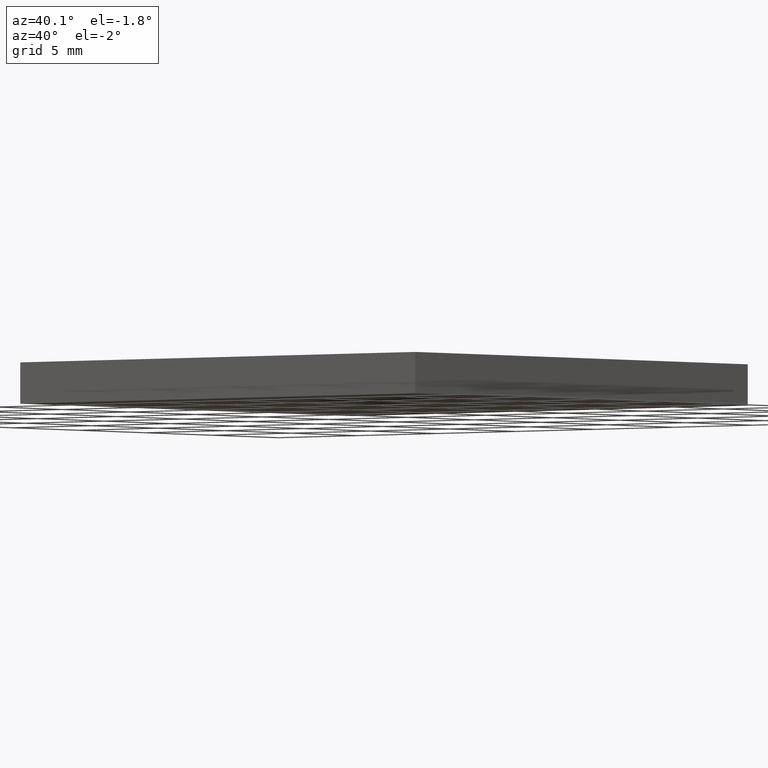
[diagram: clean part render]
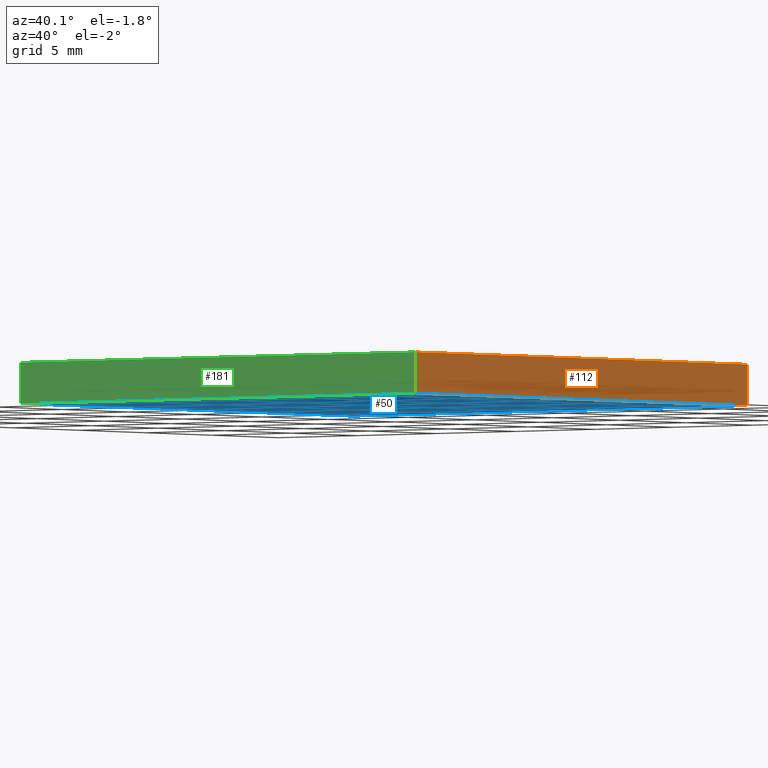
[diagram: same view with three faces highlighted in distinct colors, each labeled with its STEP entity id]
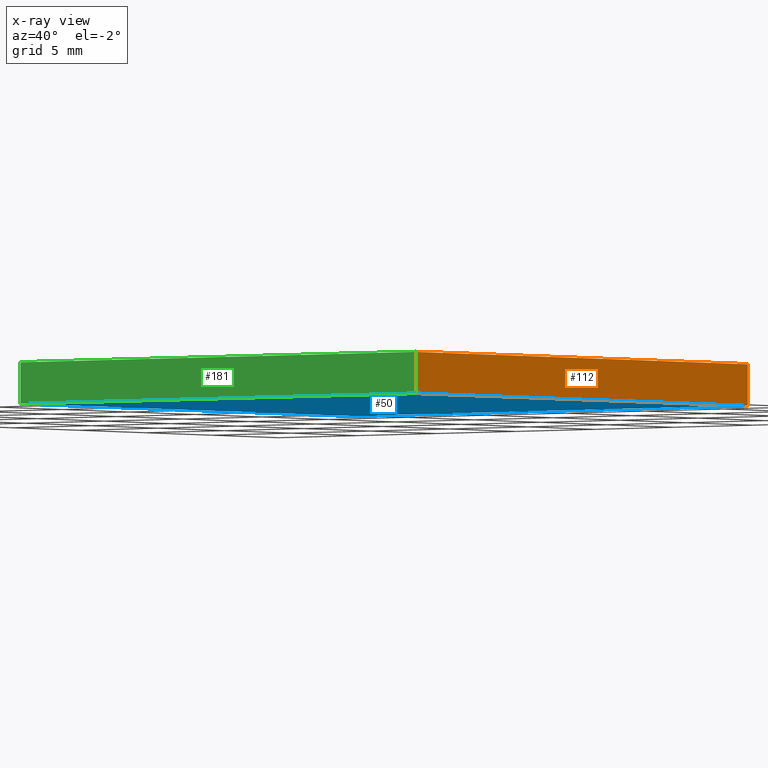
[diagram: x-ray of the same camera — body ghosted, the three highlighted faces saturated]
A machine part, auxiliary view with three faces highlighted in distinct colors.
The next image is the same camera in x-ray (body ghosted, the three faces saturated) — at least one of them is partly hidden behind the body in this view.
Their STEP definitions:

[orange] entity #112 — the highlighted planar face has unit normal (-1, 0, 0).
#3 = DIRECTION ( 'NONE',  ( -1.000000000000000000, 0.0000000000000000000, 0.0000000000000000000 ) ) ;
#4 = LINE ( 'NONE', #63, #105 ) ;
#5 = ORIENTED_EDGE ( 'NONE', *, *, #42, .T. ) ;
#11 = LINE ( 'NONE', #41, #191 ) ;
#29 = CARTESIAN_POINT ( 'NONE',  ( 233.3087717288429700, 64.79317934901541800, 2.000000000000000000 ) ) ;
#30 = VECTOR ( 'NONE', #55, 1000.000000000000000 ) ;
#33 = PLANE ( 'NONE',  #138 ) ;
#34 = CARTESIAN_POINT ( 'NONE',  ( 233.3087717288429700, 89.79317934901541800, 2.000000000000000000 ) ) ;
#40 = VERTEX_POINT ( 'NONE', #56 ) ;
#41 = CARTESIAN_POINT ( 'NONE',  ( 233.3087717288429700, 89.79317934901541800, 0.0000000000000000000 ) ) ;
#42 = EDGE_CURVE ( 'NONE', #152, #40, #11, .T. ) ;
#45 = ORIENTED_EDGE ( 'NONE', *, *, #148, .T. ) ;
#46 = EDGE_CURVE ( 'NONE', #123, #40, #157, .T. ) ;
#47 = CARTESIAN_POINT ( 'NONE',  ( 233.3087717288429700, 89.79317934901541800, 2.000000000000000000 ) ) ;
#49 = FACE_OUTER_BOUND ( 'NONE', #145, .T. ) ;
#51 = EDGE_CURVE ( 'NONE', #86, #123, #98, .T. ) ;
#54 = CARTESIAN_POINT ( 'NONE',  ( 233.3087717288429700, 89.79317934901541800, 2.000000000000000000 ) ) ;
#55 = DIRECTION ( 'NONE',  ( -0.0000000000000000000, 1.000000000000000000, -0.0000000000000000000 ) ) ;
#56 = CARTESIAN_POINT ( 'NONE',  ( 233.3087717288429700, 89.79317934901541800, 0.0000000000000000000 ) ) ;
#63 = CARTESIAN_POINT ( 'NONE',  ( 233.3087717288429700, 64.79317934901541800, 2.000000000000000000 ) ) ;
#86 = VERTEX_POINT ( 'NONE', #29 ) ;
#98 = LINE ( 'NONE', #54, #30 ) ;
#102 = ORIENTED_EDGE ( 'NONE', *, *, #51, .F. ) ;
#105 = VECTOR ( 'NONE', #176, 1000.000000000000000 ) ;
#112 = ADVANCED_FACE ( 'NONE', ( #49 ), #33, .F. ) ;
#119 = DIRECTION ( 'NONE',  ( -0.0000000000000000000, -0.0000000000000000000, -1.000000000000000000 ) ) ;
#122 = VECTOR ( 'NONE', #119, 1000.000000000000000 ) ;
#123 = VERTEX_POINT ( 'NONE', #34 ) ;
#125 = CARTESIAN_POINT ( 'NONE',  ( 233.3087717288429700, 64.79317934901541800, 0.0000000000000000000 ) ) ;
#126 = ORIENTED_EDGE ( 'NONE', *, *, #46, .F. ) ;
#138 = AXIS2_PLACEMENT_3D ( 'NONE', #47, #3, #178 ) ;
#145 = EDGE_LOOP ( 'NONE', ( #5, #126, #102, #45 ) ) ;
#148 = EDGE_CURVE ( 'NONE', #86, #152, #4, .T. ) ;
#152 = VERTEX_POINT ( 'NONE', #125 ) ;
#157 = LINE ( 'NONE', #171, #122 ) ;
#171 = CARTESIAN_POINT ( 'NONE',  ( 233.3087717288429700, 89.79317934901541800, 2.000000000000000000 ) ) ;
#176 = DIRECTION ( 'NONE',  ( -0.0000000000000000000, -0.0000000000000000000, -1.000000000000000000 ) ) ;
#178 = DIRECTION ( 'NONE',  ( 0.0000000000000000000, 0.0000000000000000000, 1.000000000000000000 ) ) ;
#185 = DIRECTION ( 'NONE',  ( -0.0000000000000000000, 1.000000000000000000, -0.0000000000000000000 ) ) ;
#191 = VECTOR ( 'NONE', #185, 1000.000000000000000 ) ;

[blue] entity #50 — the highlighted planar face has unit normal (0, 0, -1).
#9 = CARTESIAN_POINT ( 'NONE',  ( 208.3087717288429400, 77.29317934901541800, 0.0000000000000000000 ) ) ;
#11 = LINE ( 'NONE', #41, #191 ) ;
#14 = ORIENTED_EDGE ( 'NONE', *, *, #42, .F. ) ;
#15 = CARTESIAN_POINT ( 'NONE',  ( 208.3087717288429400, 64.79317934901541800, 0.0000000000000000000 ) ) ;
#19 = AXIS2_PLACEMENT_3D ( 'NONE', #89, #198, #116 ) ;
#26 = VERTEX_POINT ( 'NONE', #153 ) ;
#35 = EDGE_CURVE ( 'NONE', #26, #92, #173, .T. ) ;
#40 = VERTEX_POINT ( 'NONE', #56 ) ;
#41 = CARTESIAN_POINT ( 'NONE',  ( 233.3087717288429700, 89.79317934901541800, 0.0000000000000000000 ) ) ;
#42 = EDGE_CURVE ( 'NONE', #152, #40, #11, .T. ) ;
#50 = ADVANCED_FACE ( 'NONE', ( #140 ), #58, .T. ) ;
#53 = EDGE_CURVE ( 'NONE', #92, #152, #163, .T. ) ;
#56 = CARTESIAN_POINT ( 'NONE',  ( 233.3087717288429700, 89.79317934901541800, 0.0000000000000000000 ) ) ;
#57 = VECTOR ( 'NONE', #139, 1000.000000000000000 ) ;
#58 = PLANE ( 'NONE',  #19 ) ;
#62 = LINE ( 'NONE', #70, #95 ) ;
#67 = VECTOR ( 'NONE', #187, 1000.000000000000000 ) ;
#70 = CARTESIAN_POINT ( 'NONE',  ( 208.3087717288429400, 89.79317934901541800, 0.0000000000000000000 ) ) ;
#72 = ORIENTED_EDGE ( 'NONE', *, *, #53, .F. ) ;
#82 = EDGE_LOOP ( 'NONE', ( #72, #117, #167, #14 ) ) ;
#89 = CARTESIAN_POINT ( 'NONE',  ( 0.0000000000000000000, 0.0000000000000000000, 0.0000000000000000000 ) ) ;
#92 = VERTEX_POINT ( 'NONE', #15 ) ;
#95 = VECTOR ( 'NONE', #193, 1000.000000000000000 ) ;
#116 = DIRECTION ( 'NONE',  ( -1.000000000000000000, 0.0000000000000000000, -0.0000000000000000000 ) ) ;
#117 = ORIENTED_EDGE ( 'NONE', *, *, #35, .F. ) ;
#120 = CARTESIAN_POINT ( 'NONE',  ( 233.3087717288429700, 64.79317934901541800, 0.0000000000000000000 ) ) ;
#125 = CARTESIAN_POINT ( 'NONE',  ( 233.3087717288429700, 64.79317934901541800, 0.0000000000000000000 ) ) ;
#131 = EDGE_CURVE ( 'NONE', #40, #26, #62, .T. ) ;
#139 = DIRECTION ( 'NONE',  ( 1.000000000000000000, -0.0000000000000000000, -0.0000000000000000000 ) ) ;
#140 = FACE_OUTER_BOUND ( 'NONE', #82, .T. ) ;
#152 = VERTEX_POINT ( 'NONE', #125 ) ;
#153 = CARTESIAN_POINT ( 'NONE',  ( 208.3087717288429400, 89.79317934901541800, 0.0000000000000000000 ) ) ;
#163 = LINE ( 'NONE', #120, #57 ) ;
#167 = ORIENTED_EDGE ( 'NONE', *, *, #131, .F. ) ;
#173 = LINE ( 'NONE', #9, #67 ) ;
#185 = DIRECTION ( 'NONE',  ( -0.0000000000000000000, 1.000000000000000000, -0.0000000000000000000 ) ) ;
#187 = DIRECTION ( 'NONE',  ( -0.0000000000000000000, -1.000000000000000000, -0.0000000000000000000 ) ) ;
#191 = VECTOR ( 'NONE', #185, 1000.000000000000000 ) ;
#193 = DIRECTION ( 'NONE',  ( -1.000000000000000000, -0.0000000000000000000, -0.0000000000000000000 ) ) ;
#198 = DIRECTION ( 'NONE',  ( 0.0000000000000000000, 0.0000000000000000000, -1.000000000000000000 ) ) ;

[green] entity #181 — the highlighted planar face has unit normal (0, 1, -0).
#4 = LINE ( 'NONE', #63, #105 ) ;
#7 = CARTESIAN_POINT ( 'NONE',  ( 233.3087717288429700, 64.79317934901541800, 2.000000000000000000 ) ) ;
#15 = CARTESIAN_POINT ( 'NONE',  ( 208.3087717288429400, 64.79317934901541800, 0.0000000000000000000 ) ) ;
#16 = ORIENTED_EDGE ( 'NONE', *, *, #23, .F. ) ;
#23 = EDGE_CURVE ( 'NONE', #36, #86, #197, .T. ) ;
#29 = CARTESIAN_POINT ( 'NONE',  ( 233.3087717288429700, 64.79317934901541800, 2.000000000000000000 ) ) ;
#36 = VERTEX_POINT ( 'NONE', #136 ) ;
#43 = DIRECTION ( 'NONE',  ( -0.0000000000000000000, -0.0000000000000000000, -1.000000000000000000 ) ) ;
#53 = EDGE_CURVE ( 'NONE', #92, #152, #163, .T. ) ;
#57 = VECTOR ( 'NONE', #139, 1000.000000000000000 ) ;
#61 = AXIS2_PLACEMENT_3D ( 'NONE', #127, #195, #201 ) ;
#63 = CARTESIAN_POINT ( 'NONE',  ( 233.3087717288429700, 64.79317934901541800, 2.000000000000000000 ) ) ;
#64 = ORIENTED_EDGE ( 'NONE', *, *, #148, .F. ) ;
#65 = EDGE_CURVE ( 'NONE', #36, #92, #132, .T. ) ;
#86 = VERTEX_POINT ( 'NONE', #29 ) ;
#92 = VERTEX_POINT ( 'NONE', #15 ) ;
#105 = VECTOR ( 'NONE', #176, 1000.000000000000000 ) ;
#107 = PLANE ( 'NONE',  #61 ) ;
#120 = CARTESIAN_POINT ( 'NONE',  ( 233.3087717288429700, 64.79317934901541800, 0.0000000000000000000 ) ) ;
#125 = CARTESIAN_POINT ( 'NONE',  ( 233.3087717288429700, 64.79317934901541800, 0.0000000000000000000 ) ) ;
#127 = CARTESIAN_POINT ( 'NONE',  ( 233.3087717288429700, 64.79317934901541800, 2.000000000000000000 ) ) ;
#132 = LINE ( 'NONE', #170, #146 ) ;
#135 = EDGE_LOOP ( 'NONE', ( #166, #64, #16, #169 ) ) ;
#136 = CARTESIAN_POINT ( 'NONE',  ( 208.3087717288429400, 64.79317934901541800, 2.000000000000000000 ) ) ;
#139 = DIRECTION ( 'NONE',  ( 1.000000000000000000, -0.0000000000000000000, -0.0000000000000000000 ) ) ;
#146 = VECTOR ( 'NONE', #43, 1000.000000000000000 ) ;
#148 = EDGE_CURVE ( 'NONE', #86, #152, #4, .T. ) ;
#150 = FACE_OUTER_BOUND ( 'NONE', #135, .T. ) ;
#151 = DIRECTION ( 'NONE',  ( 1.000000000000000000, -0.0000000000000000000, -0.0000000000000000000 ) ) ;
#152 = VERTEX_POINT ( 'NONE', #125 ) ;
#159 = VECTOR ( 'NONE', #151, 1000.000000000000000 ) ;
#163 = LINE ( 'NONE', #120, #57 ) ;
#166 = ORIENTED_EDGE ( 'NONE', *, *, #53, .T. ) ;
#169 = ORIENTED_EDGE ( 'NONE', *, *, #65, .T. ) ;
#170 = CARTESIAN_POINT ( 'NONE',  ( 208.3087717288429400, 64.79317934901541800, 2.000000000000000000 ) ) ;
#176 = DIRECTION ( 'NONE',  ( -0.0000000000000000000, -0.0000000000000000000, -1.000000000000000000 ) ) ;
#181 = ADVANCED_FACE ( 'NONE', ( #150 ), #107, .F. ) ;
#195 = DIRECTION ( 'NONE',  ( 0.0000000000000000000, 1.000000000000000000, -0.0000000000000000000 ) ) ;
#197 = LINE ( 'NONE', #7, #159 ) ;
#201 = DIRECTION ( 'NONE',  ( 0.0000000000000000000, 0.0000000000000000000, 1.000000000000000000 ) ) ;